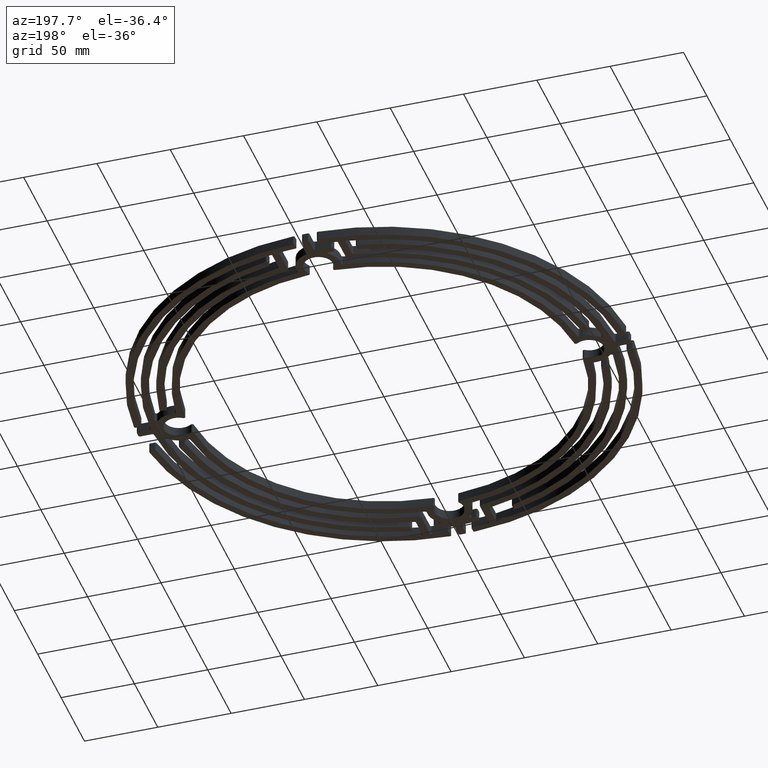
[diagram: clean part render]
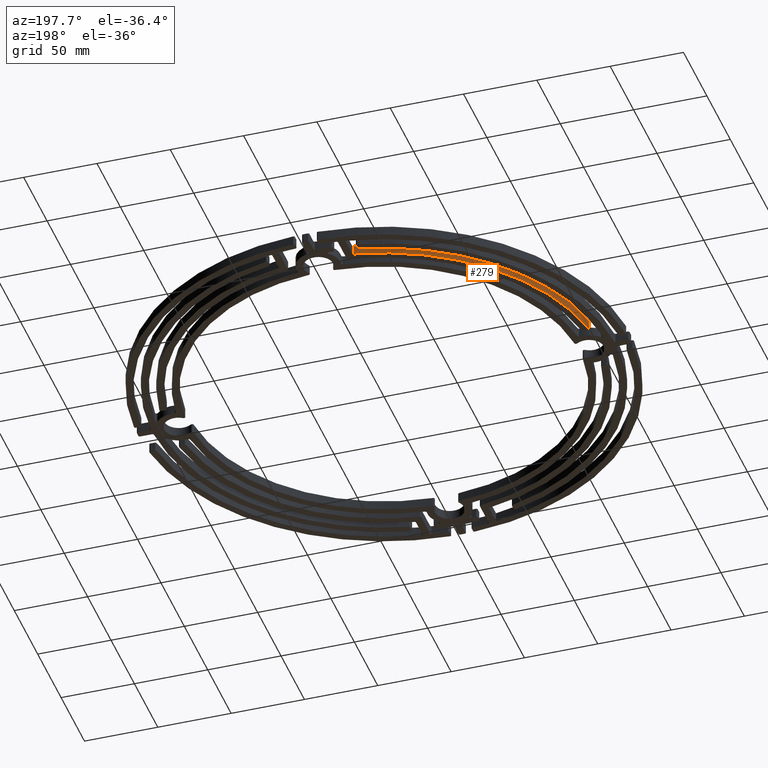
[diagram: same view with one face highlighted and labeled with its STEP entity id]
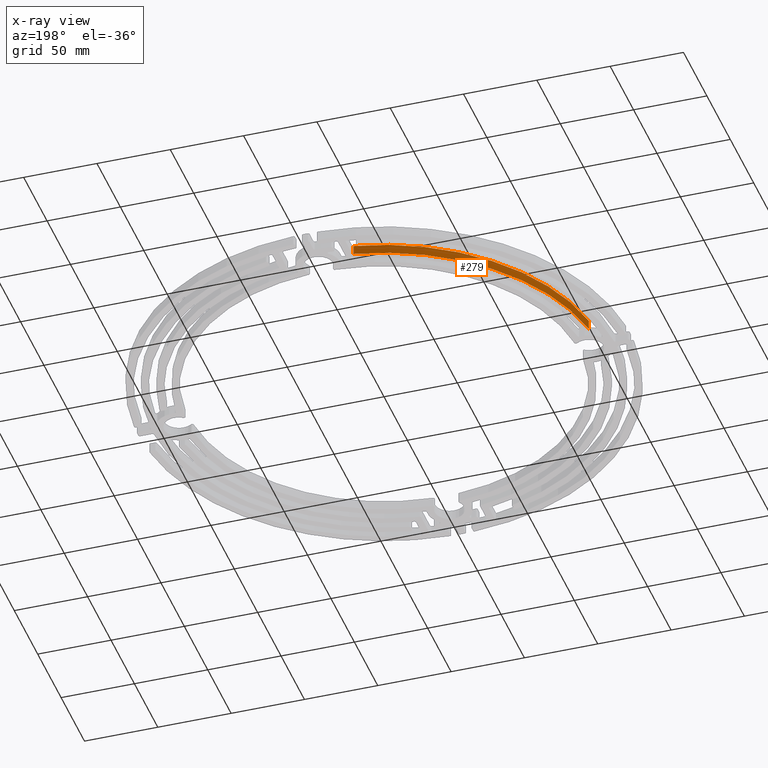
[diagram: x-ray of the same camera — body ghosted, the highlighted face saturated]
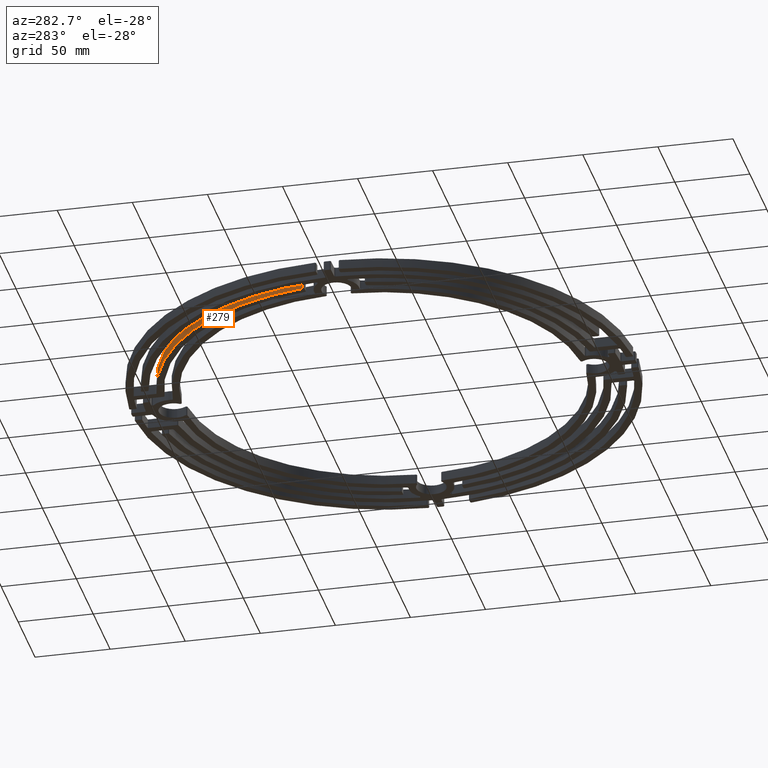
[diagram: same view with one face highlighted and labeled with its STEP entity id]
A machine part, auxiliary view. The second image highlights one B-rep face of the part: STEP entity #279.
The next image is the same camera in x-ray: the body ghosted, the highlighted face saturated — about 0% of this face is hidden behind the body in this view.
A second angle (auxiliary view) of the same face is appended — the face is thin or edge-on in the first view.
In plain terms, the highlighted cylindrical surface (partial cylindrical patch) has radius 148 mm, axis along (-0, -0, -1).
Its self-contained STEP definition (entity closure, byte-faithful):
#21 = VERTEX_POINT ( 'NONE', #824 ) ;
#121 = VERTEX_POINT ( 'NONE', #924 ) ;
#123 = VERTEX_POINT ( 'NONE', #926 ) ;
#125 = VERTEX_POINT ( 'NONE', #928 ) ;
#279 = ADVANCED_FACE ( 'NONE', ( #3938 ), #3939, .T. ) ;
#440 = EDGE_CURVE ( 'NONE', #21, #125, #4200, .T. ) ;
#441 = EDGE_CURVE ( 'NONE', #21, #123, #4199, .T. ) ;
#442 = EDGE_CURVE ( 'NONE', #123, #121, #4203, .T. ) ;
#443 = EDGE_CURVE ( 'NONE', #121, #125, #4202, .T. ) ;
#824 = CARTESIAN_POINT ( 'NONE',  ( -25.82550335570469000, 145.7293497426804500, 6.349999999999999600 ) ) ;
#924 = CARTESIAN_POINT ( 'NONE',  ( -146.4820111543964500, 21.14285714285714200, 0.0000000000000000000 ) ) ;
#926 = CARTESIAN_POINT ( 'NONE',  ( -25.82550335570469000, 145.7293497426804500, 0.0000000000000000000 ) ) ;
#928 = CARTESIAN_POINT ( 'NONE',  ( -146.4820111543964500, 21.14285714285714200, 6.349999999999999600 ) ) ;
#1321 = CARTESIAN_POINT ( 'NONE',  ( 0.0000000000000000000, 0.0000000000000000000, 6.349999999999999600 ) ) ;
#1322 = DIRECTION ( 'NONE',  ( -0.0000000000000000000, -0.0000000000000000000, -1.000000000000000000 ) ) ;
#1323 = DIRECTION ( 'NONE',  ( -1.000000000000000000, 0.0000000000000000000, 0.0000000000000000000 ) ) ;
#1850 = CARTESIAN_POINT ( 'NONE',  ( 0.0000000000000000000, 0.0000000000000000000, 6.349999999999999600 ) ) ;
#1852 = DIRECTION ( 'NONE',  ( 0.0000000000000000000, 0.0000000000000000000, 1.000000000000000000 ) ) ;
#1854 = DIRECTION ( 'NONE',  ( 1.000000000000000000, 0.0000000000000000000, 0.0000000000000000000 ) ) ;
#1857 = CARTESIAN_POINT ( 'NONE',  ( -25.82550335570468600, 145.7293497426804300, 6.349999999999999600 ) ) ;
#1859 = DIRECTION ( 'NONE',  ( -0.0000000000000000000, -0.0000000000000000000, -1.000000000000000000 ) ) ;
#1861 = CARTESIAN_POINT ( 'NONE',  ( 0.0000000000000000000, 0.0000000000000000000, 0.0000000000000000000 ) ) ;
#1863 = DIRECTION ( 'NONE',  ( 0.0000000000000000000, 0.0000000000000000000, 1.000000000000000000 ) ) ;
#1864 = DIRECTION ( 'NONE',  ( 1.000000000000000000, 0.0000000000000000000, 0.0000000000000000000 ) ) ;
#1867 = CARTESIAN_POINT ( 'NONE',  ( -146.4820111543964500, 21.14285714285714200, 6.349999999999999600 ) ) ;
#1868 = DIRECTION ( 'NONE',  ( 0.0000000000000000000, 0.0000000000000000000, 1.000000000000000000 ) ) ;
#3293 = AXIS2_PLACEMENT_3D ( 'NONE', #1321, #1322, #1323 ) ;
#3341 = AXIS2_PLACEMENT_3D ( 'NONE', #1850, #1852, #1854 ) ;
#3342 = AXIS2_PLACEMENT_3D ( 'NONE', #1861, #1863, #1864 ) ;
#3580 = EDGE_LOOP ( 'NONE', ( #7093, #7096, #7092, #7095 ) ) ;
#3938 = FACE_OUTER_BOUND ( 'NONE', #3580, .T. ) ;
#3939 = CYLINDRICAL_SURFACE ( 'NONE', #3293, 147.9999999999999700 ) ;
#4199 = LINE ( 'NONE', #1857, #4201 ) ;
#4200 = CIRCLE ( 'NONE', #3341, 147.9999999999999700 ) ;
#4201 = VECTOR ( 'NONE', #1859, 1000.000000000000000 ) ;
#4202 = LINE ( 'NONE', #1867, #4204 ) ;
#4203 = CIRCLE ( 'NONE', #3342, 147.9999999999999700 ) ;
#4204 = VECTOR ( 'NONE', #1868, 1000.000000000000000 ) ;
#7092 = ORIENTED_EDGE ( 'NONE', *, *, #442, .T. ) ;
#7093 = ORIENTED_EDGE ( 'NONE', *, *, #440, .F. ) ;
#7095 = ORIENTED_EDGE ( 'NONE', *, *, #443, .T. ) ;
#7096 = ORIENTED_EDGE ( 'NONE', *, *, #441, .T. ) ;